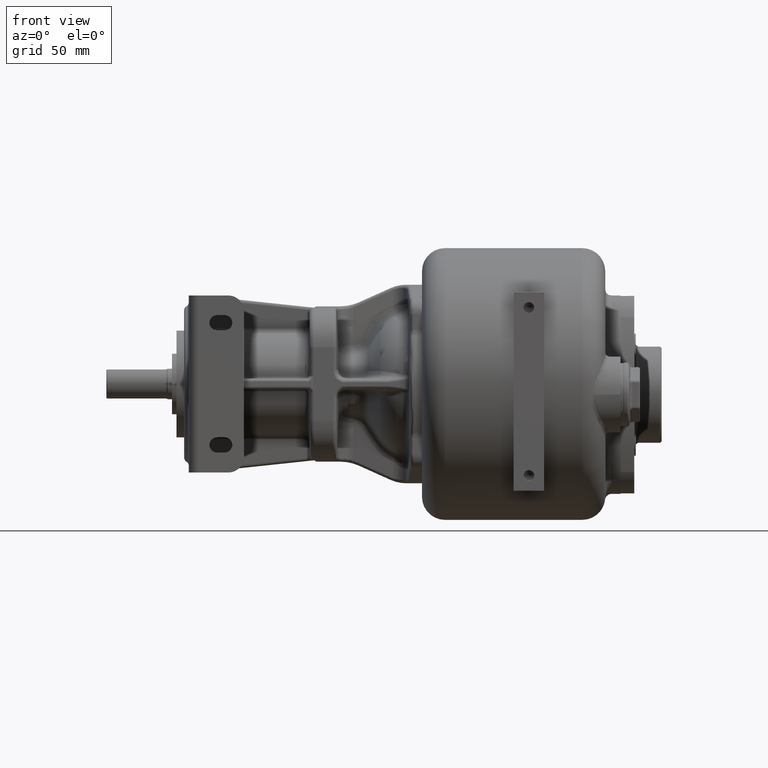
[diagram: clean part render]
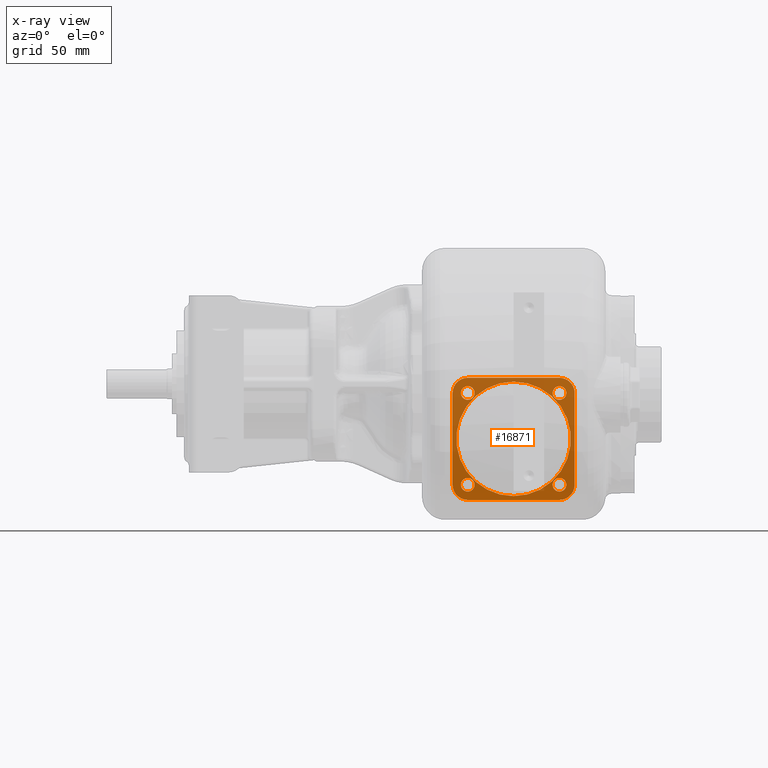
[diagram: x-ray — body ghosted, one internal face saturated and labeled with its STEP entity id]
A machine part, front view, then the same camera in x-ray: the body is ghosted and one INTERNAL B-rep face — a face not visible from any outside direction — is saturated and labeled: STEP entity #16871.
In plain terms, the highlighted planar face has unit normal (0, -1, 0).
Its self-contained STEP definition (entity closure, byte-faithful):
#330=CARTESIAN_POINT('',(-1.E1,2.375E2,-3.6E1));
#331=DIRECTION('',(0.E0,-1.E0,0.E0));
#332=DIRECTION('',(0.E0,0.E0,1.E0));
#333=AXIS2_PLACEMENT_3D('',#330,#331,#332);
#339=CARTESIAN_POINT('',(-1.E1,2.375E2,-3.6E1));
#340=DIRECTION('',(0.E0,1.E0,0.E0));
#341=DIRECTION('',(0.E0,0.E0,1.E0));
#342=AXIS2_PLACEMENT_3D('',#339,#340,#341);
#348=CARTESIAN_POINT('',(-4.005203820043E1,2.375E2,-5.947961799572E0));
#349=DIRECTION('',(0.E0,-1.E0,0.E0));
#350=DIRECTION('',(0.E0,0.E0,1.E0));
#351=AXIS2_PLACEMENT_3D('',#348,#349,#350);
#353=CARTESIAN_POINT('',(-4.005203820043E1,2.375E2,-5.947961799572E0));
#354=DIRECTION('',(0.E0,-1.E0,0.E0));
#355=DIRECTION('',(0.E0,0.E0,-1.E0));
#356=AXIS2_PLACEMENT_3D('',#353,#354,#355);
#358=CARTESIAN_POINT('',(2.005203820043E1,2.375E2,-5.947961799572E0));
#359=DIRECTION('',(0.E0,-1.E0,0.E0));
#360=DIRECTION('',(1.E0,0.E0,0.E0));
#361=AXIS2_PLACEMENT_3D('',#358,#359,#360);
#363=CARTESIAN_POINT('',(2.005203820043E1,2.375E2,-5.947961799572E0));
#364=DIRECTION('',(0.E0,-1.E0,0.E0));
#365=DIRECTION('',(-1.E0,0.E0,0.E0));
#366=AXIS2_PLACEMENT_3D('',#363,#364,#365);
#368=CARTESIAN_POINT('',(2.005203820043E1,2.375E2,-6.605203820043E1));
#369=DIRECTION('',(0.E0,-1.E0,0.E0));
#370=DIRECTION('',(0.E0,0.E0,-1.E0));
#371=AXIS2_PLACEMENT_3D('',#368,#369,#370);
#373=CARTESIAN_POINT('',(2.005203820043E1,2.375E2,-6.605203820043E1));
#374=DIRECTION('',(0.E0,-1.E0,0.E0));
#375=DIRECTION('',(0.E0,0.E0,1.E0));
#376=AXIS2_PLACEMENT_3D('',#373,#374,#375);
#378=CARTESIAN_POINT('',(-4.005203820043E1,2.375E2,-6.605203820043E1));
#379=DIRECTION('',(0.E0,-1.E0,0.E0));
#380=DIRECTION('',(-1.E0,0.E0,0.E0));
#381=AXIS2_PLACEMENT_3D('',#378,#379,#380);
#383=CARTESIAN_POINT('',(-4.005203820043E1,2.375E2,-6.605203820043E1));
#384=DIRECTION('',(0.E0,-1.E0,0.E0));
#385=DIRECTION('',(1.E0,0.E0,0.E0));
#386=AXIS2_PLACEMENT_3D('',#383,#384,#385);
#396=DIRECTION('',(-1.E0,0.E0,0.E0));
#397=VECTOR('',#396,6.E1);
#398=CARTESIAN_POINT('',(2.E1,2.375E2,-7.6E1));
#399=LINE('',#398,#397);
#459=CARTESIAN_POINT('',(2.E1,2.375E2,-6.6E1));
#460=DIRECTION('',(0.E0,-1.E0,0.E0));
#461=DIRECTION('',(0.E0,0.E0,-1.E0));
#462=AXIS2_PLACEMENT_3D('',#459,#460,#461);
#472=DIRECTION('',(0.E0,0.E0,-1.E0));
#473=VECTOR('',#472,6.E1);
#474=CARTESIAN_POINT('',(3.E1,2.375E2,-6.E0));
#475=LINE('',#474,#473);
#485=CARTESIAN_POINT('',(2.E1,2.375E2,-6.E0));
#486=DIRECTION('',(0.E0,-1.E0,0.E0));
#487=DIRECTION('',(1.E0,0.E0,0.E0));
#488=AXIS2_PLACEMENT_3D('',#485,#486,#487);
#498=DIRECTION('',(1.E0,0.E0,0.E0));
#499=VECTOR('',#498,6.E1);
#500=CARTESIAN_POINT('',(-4.E1,2.375E2,4.E0));
#501=LINE('',#500,#499);
#511=CARTESIAN_POINT('',(-4.E1,2.375E2,-6.E0));
#512=DIRECTION('',(0.E0,-1.E0,0.E0));
#513=DIRECTION('',(0.E0,0.E0,1.E0));
#514=AXIS2_PLACEMENT_3D('',#511,#512,#513);
#524=DIRECTION('',(0.E0,0.E0,1.E0));
#525=VECTOR('',#524,6.E1);
#526=CARTESIAN_POINT('',(-5.E1,2.375E2,-6.6E1));
#527=LINE('',#526,#525);
#537=CARTESIAN_POINT('',(-4.E1,2.375E2,-6.6E1));
#538=DIRECTION('',(0.E0,-1.E0,0.E0));
#539=DIRECTION('',(-1.E0,0.E0,0.E0));
#540=AXIS2_PLACEMENT_3D('',#537,#538,#539);
#14546=CARTESIAN_POINT('',(-1.E1,2.375E2,1.5E0));
#14547=CARTESIAN_POINT('',(-1.E1,2.375E2,-7.35E1));
#14548=VERTEX_POINT('',#14546);
#14549=VERTEX_POINT('',#14547);
#14558=CARTESIAN_POINT('',(2.E1,2.375E2,-7.6E1));
#14559=CARTESIAN_POINT('',(-4.E1,2.375E2,-7.6E1));
#14560=VERTEX_POINT('',#14558);
#14561=VERTEX_POINT('',#14559);
#14566=CARTESIAN_POINT('',(-5.E1,2.375E2,-6.6E1));
#14567=CARTESIAN_POINT('',(-5.E1,2.375E2,-6.E0));
#14568=VERTEX_POINT('',#14566);
#14569=VERTEX_POINT('',#14567);
#14574=CARTESIAN_POINT('',(-4.E1,2.375E2,4.E0));
#14575=CARTESIAN_POINT('',(2.E1,2.375E2,4.E0));
#14576=VERTEX_POINT('',#14574);
#14577=VERTEX_POINT('',#14575);
#14582=CARTESIAN_POINT('',(3.E1,2.375E2,-6.E0));
#14583=CARTESIAN_POINT('',(3.E1,2.375E2,-6.6E1));
#14584=VERTEX_POINT('',#14582);
#14585=VERTEX_POINT('',#14583);
#14590=CARTESIAN_POINT('',(-4.005203820043E1,2.375E2,-1.447961799572E0));
#14591=CARTESIAN_POINT('',(-4.005203820043E1,2.375E2,-1.044796179957E1));
#14592=VERTEX_POINT('',#14590);
#14593=VERTEX_POINT('',#14591);
#14598=CARTESIAN_POINT('',(2.455203820043E1,2.375E2,-5.947961799572E0));
#14599=CARTESIAN_POINT('',(1.555203820043E1,2.375E2,-5.947961799572E0));
#14600=VERTEX_POINT('',#14598);
#14601=VERTEX_POINT('',#14599);
#14606=CARTESIAN_POINT('',(2.005203820043E1,2.375E2,-7.055203820043E1));
#14607=CARTESIAN_POINT('',(2.005203820043E1,2.375E2,-6.155203820043E1));
#14608=VERTEX_POINT('',#14606);
#14609=VERTEX_POINT('',#14607);
#14614=CARTESIAN_POINT('',(-4.455203820043E1,2.375E2,-6.605203820043E1));
#14615=CARTESIAN_POINT('',(-3.555203820043E1,2.375E2,-6.605203820043E1));
#14616=VERTEX_POINT('',#14614);
#14617=VERTEX_POINT('',#14615);
#16820=CARTESIAN_POINT('',(-1.E1,2.375E2,-3.6E1));
#16821=DIRECTION('',(0.E0,-1.E0,0.E0));
#16822=DIRECTION('',(0.E0,0.E0,-1.E0));
#16823=AXIS2_PLACEMENT_3D('',#16820,#16821,#16822);
#16824=PLANE('',#16823);
#16826=ORIENTED_EDGE('',*,*,#16825,.T.);
#16828=ORIENTED_EDGE('',*,*,#16827,.F.);
#16830=ORIENTED_EDGE('',*,*,#16829,.T.);
#16832=ORIENTED_EDGE('',*,*,#16831,.F.);
#16834=ORIENTED_EDGE('',*,*,#16833,.T.);
#16836=ORIENTED_EDGE('',*,*,#16835,.F.);
#16838=ORIENTED_EDGE('',*,*,#16837,.T.);
#16840=ORIENTED_EDGE('',*,*,#16839,.F.);
#16841=EDGE_LOOP('',(#16826,#16828,#16830,#16832,#16834,#16836,#16838,#16840));
#16842=FACE_OUTER_BOUND('',#16841,.F.);
#16843=ORIENTED_EDGE('',*,*,#16800,.T.);
#16844=ORIENTED_EDGE('',*,*,#16814,.F.);
#16845=EDGE_LOOP('',(#16843,#16844));
#16846=FACE_BOUND('',#16845,.F.);
#16848=ORIENTED_EDGE('',*,*,#16847,.T.);
#16850=ORIENTED_EDGE('',*,*,#16849,.T.);
#16851=EDGE_LOOP('',(#16848,#16850));
#16852=FACE_BOUND('',#16851,.F.);
#16854=ORIENTED_EDGE('',*,*,#16853,.T.);
#16856=ORIENTED_EDGE('',*,*,#16855,.T.);
#16857=EDGE_LOOP('',(#16854,#16856));
#16858=FACE_BOUND('',#16857,.F.);
#16860=ORIENTED_EDGE('',*,*,#16859,.T.);
#16862=ORIENTED_EDGE('',*,*,#16861,.T.);
#16863=EDGE_LOOP('',(#16860,#16862));
#16864=FACE_BOUND('',#16863,.F.);
#16866=ORIENTED_EDGE('',*,*,#16865,.T.);
#16868=ORIENTED_EDGE('',*,*,#16867,.T.);
#16869=EDGE_LOOP('',(#16866,#16868));
#16870=FACE_BOUND('',#16869,.F.);
#16871=ADVANCED_FACE('',(#16842,#16846,#16852,#16858,#16864,#16870),#16824,.T.);
#334=CIRCLE('',#333,3.75E1);
#343=CIRCLE('',#342,3.75E1);
#352=CIRCLE('',#351,4.5E0);
#357=CIRCLE('',#356,4.5E0);
#362=CIRCLE('',#361,4.5E0);
#367=CIRCLE('',#366,4.5E0);
#372=CIRCLE('',#371,4.5E0);
#377=CIRCLE('',#376,4.5E0);
#382=CIRCLE('',#381,4.5E0);
#387=CIRCLE('',#386,4.5E0);
#463=CIRCLE('',#462,1.E1);
#489=CIRCLE('',#488,1.E1);
#515=CIRCLE('',#514,1.E1);
#541=CIRCLE('',#540,1.E1);
#16800=EDGE_CURVE('',#14548,#14549,#334,.T.);
#16814=EDGE_CURVE('',#14548,#14549,#343,.T.);
#16825=EDGE_CURVE('',#14560,#14561,#399,.T.);
#16827=EDGE_CURVE('',#14568,#14561,#541,.T.);
#16829=EDGE_CURVE('',#14568,#14569,#527,.T.);
#16831=EDGE_CURVE('',#14576,#14569,#515,.T.);
#16833=EDGE_CURVE('',#14576,#14577,#501,.T.);
#16835=EDGE_CURVE('',#14584,#14577,#489,.T.);
#16837=EDGE_CURVE('',#14584,#14585,#475,.T.);
#16839=EDGE_CURVE('',#14560,#14585,#463,.T.);
#16847=EDGE_CURVE('',#14592,#14593,#352,.T.);
#16849=EDGE_CURVE('',#14593,#14592,#357,.T.);
#16853=EDGE_CURVE('',#14600,#14601,#362,.T.);
#16855=EDGE_CURVE('',#14601,#14600,#367,.T.);
#16859=EDGE_CURVE('',#14608,#14609,#372,.T.);
#16861=EDGE_CURVE('',#14609,#14608,#377,.T.);
#16865=EDGE_CURVE('',#14616,#14617,#382,.T.);
#16867=EDGE_CURVE('',#14617,#14616,#387,.T.);